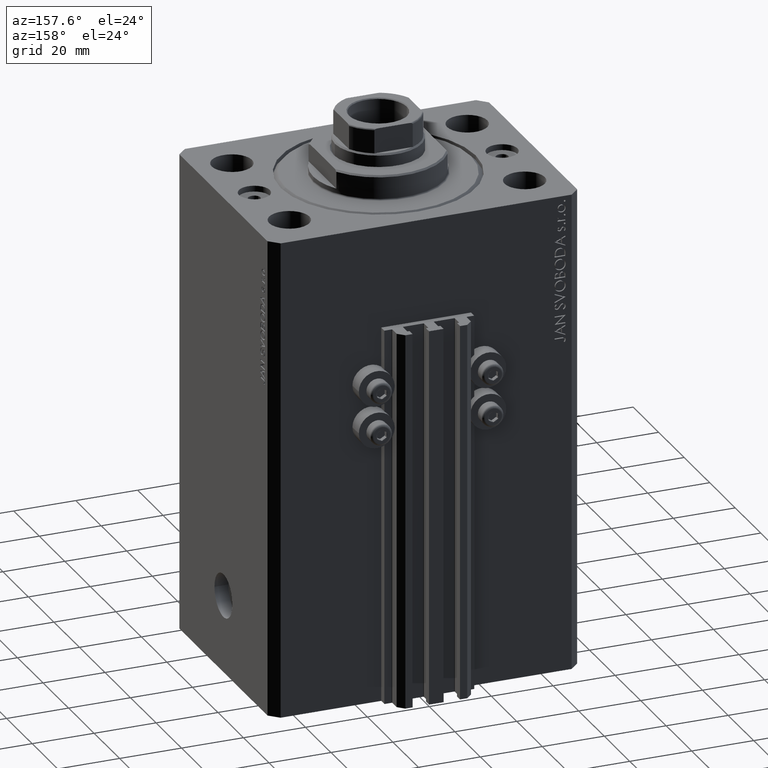
[diagram: clean part render]
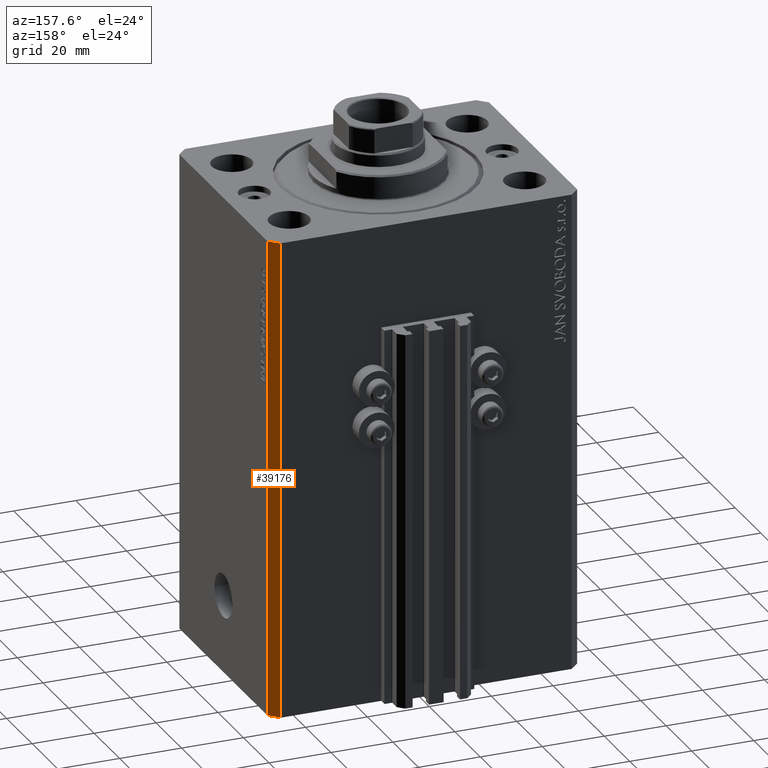
[diagram: same view with one face highlighted and labeled with its STEP entity id]
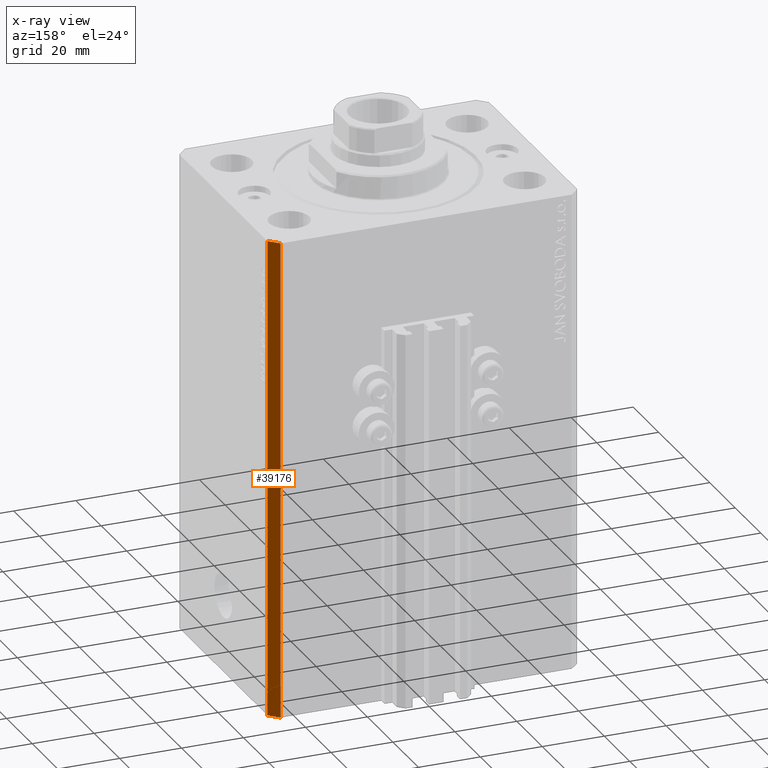
[diagram: x-ray of the same camera — body ghosted, the highlighted face saturated]
A machine part, auxiliary view. The second image highlights one B-rep face of the part: STEP entity #39176.
The next image is the same camera in x-ray: the body ghosted, the highlighted face saturated — about 0% of this face is hidden behind the body in this view.
In plain terms, the highlighted planar face has unit normal (0.7071, 0.7071, 0).
Its self-contained STEP definition (entity closure, byte-faithful):
#1265 = AXIS2_PLACEMENT_3D ( 'NONE', #23730, #39702, #47103 ) ;
#1382 = EDGE_CURVE ( 'NONE', #12415, #26561, #36174, .T. ) ;
#1489 = DIRECTION ( 'NONE',  ( 0.000000000000000000, 0.000000000000000000, 1.000000000000000000 ) ) ;
#3953 = EDGE_CURVE ( 'NONE', #4113, #26561, #5070, .T. ) ;
#4113 = VERTEX_POINT ( 'NONE', #20559 ) ;
#4114 = VERTEX_POINT ( 'NONE', #42752 ) ;
#5070 = LINE ( 'NONE', #13155, #43572 ) ;
#5315 = LINE ( 'NONE', #37311, #27222 ) ;
#6975 = CARTESIAN_POINT ( 'NONE',  ( 47.00000000000056843, 37.49999999999999289, 0.000000000000000000 ) ) ;
#7799 = ORIENTED_EDGE ( 'NONE', *, *, #1382, .F. ) ;
#11099 = DIRECTION ( 'NONE',  ( -0.7071067811865361374, 0.7071067811865588970, 0.000000000000000000 ) ) ;
#12415 = VERTEX_POINT ( 'NONE', #33358 ) ;
#12727 = EDGE_CURVE ( 'NONE', #4114, #12415, #26081, .T. ) ;
#13155 = CARTESIAN_POINT ( 'NONE',  ( 47.00000000000056843, 37.49999999999999289, -155.0000000000000000 ) ) ;
#16000 = ORIENTED_EDGE ( 'NONE', *, *, #3953, .T. ) ;
#17540 = CARTESIAN_POINT ( 'NONE',  ( 50.00000000000051870, 34.49999999999995026, 0.000000000000000000 ) ) ;
#17824 = VECTOR ( 'NONE', #22258, 1000.000000000000000 ) ;
#18908 = CARTESIAN_POINT ( 'NONE',  ( 50.00000000000051870, 34.49999999999995026, -155.0000000000000000 ) ) ;
#20559 = CARTESIAN_POINT ( 'NONE',  ( 47.00000000000056843, 37.49999999999999289, -155.0000000000000000 ) ) ;
#22258 = DIRECTION ( 'NONE',  ( 0.000000000000000000, 0.000000000000000000, 1.000000000000000000 ) ) ;
#23066 = EDGE_LOOP ( 'NONE', ( #7799, #46526, #33443, #16000 ) ) ;
#23730 = CARTESIAN_POINT ( 'NONE',  ( 50.00000000000051870, 34.49999999999995026, -155.0000000000000000 ) ) ;
#26081 = LINE ( 'NONE', #18908, #17824 ) ;
#26561 = VERTEX_POINT ( 'NONE', #6975 ) ;
#27040 = DIRECTION ( 'NONE',  ( -0.7071067811865361374, 0.7071067811865588970, 0.000000000000000000 ) ) ;
#27222 = VECTOR ( 'NONE', #27040, 1000.000000000000114 ) ;
#30552 = VECTOR ( 'NONE', #11099, 1000.000000000000114 ) ;
#33358 = CARTESIAN_POINT ( 'NONE',  ( 50.00000000000051870, 34.49999999999995026, 0.000000000000000000 ) ) ;
#33443 = ORIENTED_EDGE ( 'NONE', *, *, #41273, .T. ) ;
#36174 = LINE ( 'NONE', #17540, #30552 ) ;
#37311 = CARTESIAN_POINT ( 'NONE',  ( 50.00000000000051870, 34.49999999999995026, -155.0000000000000000 ) ) ;
#38276 = PLANE ( 'NONE',  #1265 ) ;
#39176 = ADVANCED_FACE ( 'NONE', ( #41871 ), #38276, .T. ) ;
#39702 = DIRECTION ( 'NONE',  ( 0.7071067811865588970, 0.7071067811865361374, -0.000000000000000000 ) ) ;
#41273 = EDGE_CURVE ( 'NONE', #4114, #4113, #5315, .T. ) ;
#41871 = FACE_OUTER_BOUND ( 'NONE', #23066, .T. ) ;
#42752 = CARTESIAN_POINT ( 'NONE',  ( 50.00000000000051870, 34.49999999999995026, -155.0000000000000000 ) ) ;
#43572 = VECTOR ( 'NONE', #1489, 1000.000000000000000 ) ;
#46526 = ORIENTED_EDGE ( 'NONE', *, *, #12727, .F. ) ;
#47103 = DIRECTION ( 'NONE',  ( -0.7071067811865361374, 0.7071067811865588970, 0.000000000000000000 ) ) ;